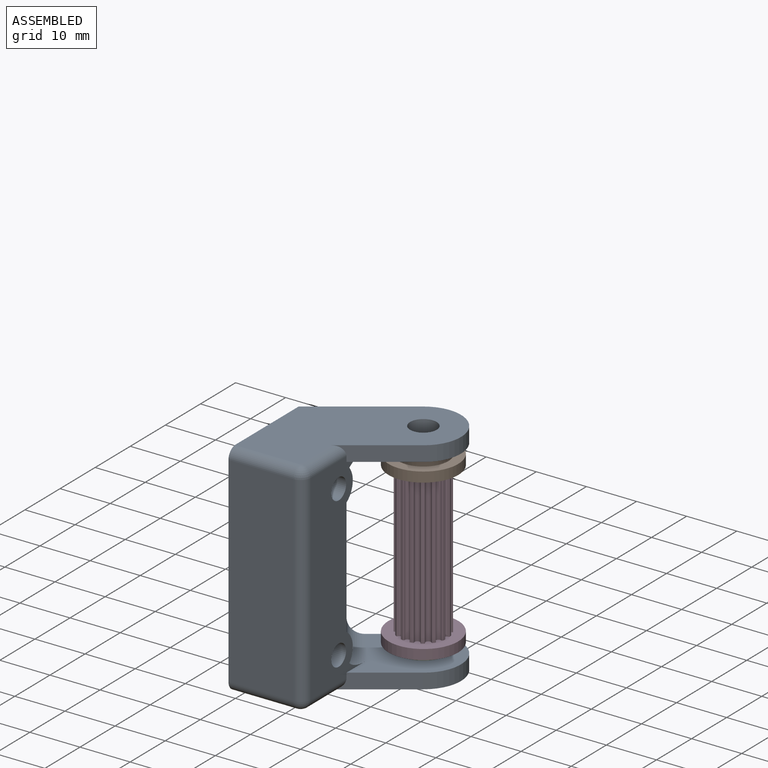
[diagram: assembled view]
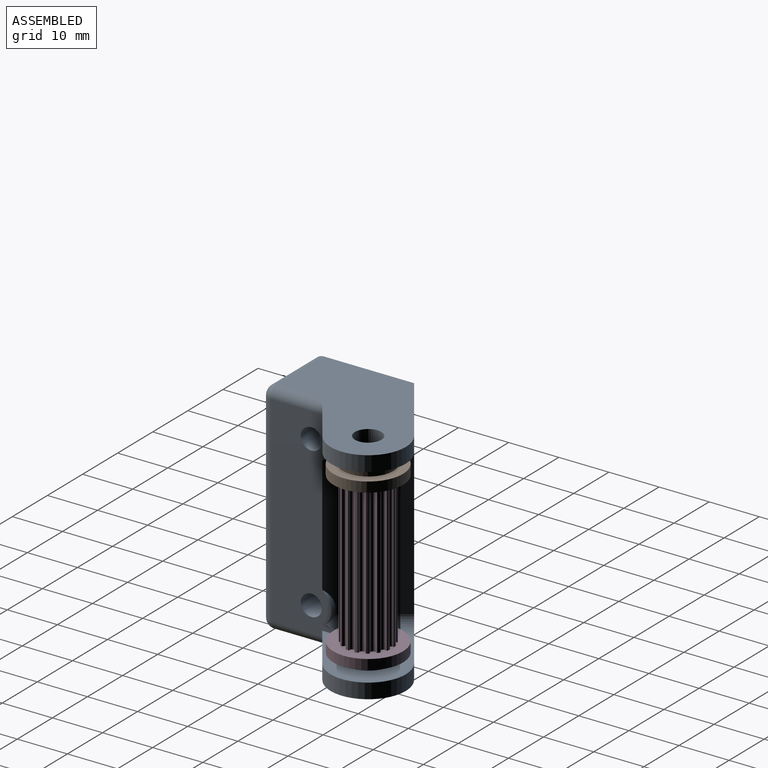
[diagram: assembled view, second angle]
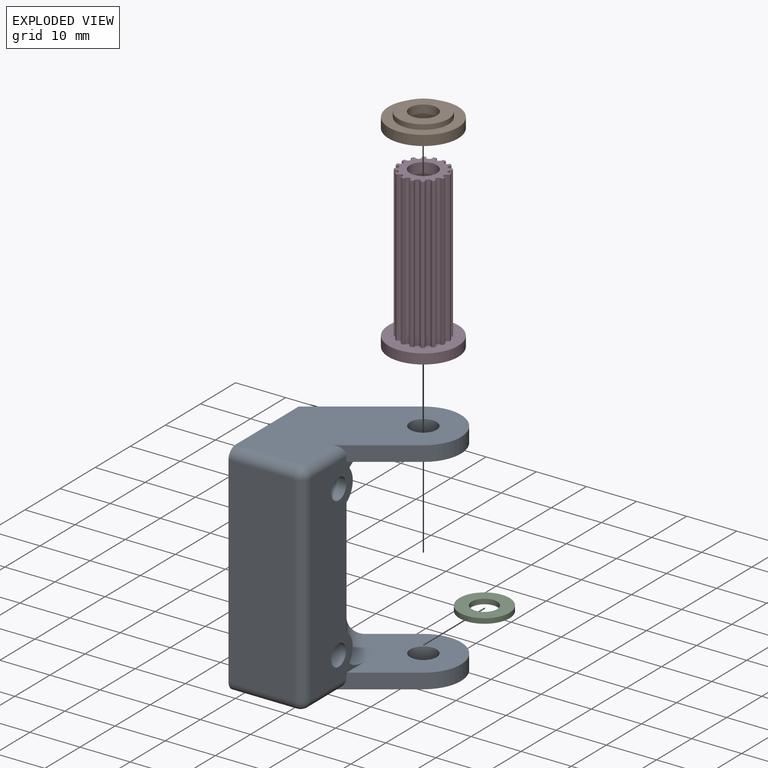
[diagram: exploded view]
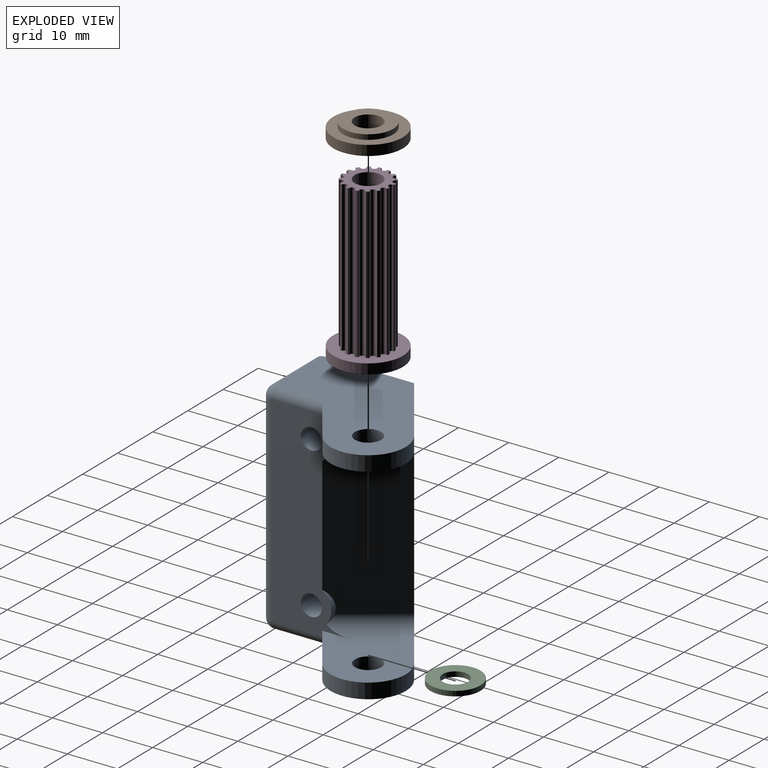
[diagram: exploded view, second angle]
ASSEMBLY  parts=4 mates=3
PART A: 28 faces, bbox 28.5x33x44 mm
  f0: plane 12.3x8.61mm, normal (0.57,-0.82,0), area 38.8mm2, adj f7,f8,f11,f12,f19
  f1: plane 44x16.7mm, normal (-0.57,0.82,0), area 422.9mm2, adj f3,f5,f8,f10,f11,f12,f13,f14
  f2: plane 12.3x8.61mm, normal (0.57,-0.82,0), area 38.8mm2, adj f3,f7,f10,f13,f18
  f3: cylinder r=7.5mm len=13.64mm, axis (0,0,-1), area 70.7mm2, adj f1,f2,f10,f13
  f4: cylinder r=2.65mm len=5.3mm, axis (0,0,-1), area 50mm2, adj f10,f13
  f5: plane 44x20mm, normal (-1,0,0), area 850.6mm2, adj f1,f6,f10,f11,f17,f20,f24,f25
  f6: plane 40x13mm, normal (0,-1,0), area 520mm2, adj f5,f17,f20,f23
  f7: plane 40x15.42mm, normal (1,0,0), area 402.2mm2, adj f0,f2,f12,f13,f14,f15,f16,f18
  f8: cylinder r=7.5mm len=13.64mm, axis (0,0,-1), area 70.7mm2, adj f0,f1,f11,f12
  f9: cylinder r=2.65mm len=5.3mm, axis (0,0,-1), area 50mm2, adj f11,f12
  f10: plane 31.05x28.5mm, normal (0,0,1), area 506mm2, adj f1,f2,f3,f4,f5,f17,f18
  f11: plane 31.05x28.5mm, normal (0,0,-1), area 506mm2, adj f0,f1,f5,f8,f9,f19,f20
  f12: plane 20.86x19.65mm, normal (0,0,1), area 216.4mm2, adj f0,f1,f7,f8,f9,f15
  f13: plane 20.86x19.65mm, normal (0,0,-1), area 216.4mm2, adj f1,f2,f3,f4,f7,f16
  f14: plane 32x12.29mm, normal (0.82,0.57,0), area 465.3mm2, adj f1,f7,f15,f16,f26,f27
  f15: cylinder r=3mm len=13.45mm, axis (0.57,-0.82,0), area 61.2mm2, adj f1,f7,f12,f14,f27
  f16: cylinder r=3mm len=13.45mm, axis (-0.57,0.82,0), area 61.2mm2, adj f1,f7,f13,f14,f26
  f17: cylinder r=2mm len=13mm, axis (-1,0,0), area 40.8mm2, adj f5,f6,f10,f21
  f18: cylinder r=2mm len=10.19mm, axis (0,-1,0), area 30.4mm2, adj f2,f7,f10,f21
  f19: cylinder r=2mm len=10.19mm, axis (0,1,0), area 30.4mm2, adj f0,f7,f11,f22
  f20: cylinder r=2mm len=13mm, axis (1,0,0), area 40.8mm2, adj f5,f6,f11,f22
  f21: sphere r=2mm, area 6.3mm2, adj f17,f18,f23
  f22: sphere r=2mm, area 6.3mm2, adj f19,f20,f23
  f23: cylinder r=2mm len=40mm, axis (0,0,-1), area 125.7mm2, adj f6,f7,f21,f22
  f24: cylinder r=2.1mm len=15mm, axis (1,0,0), area 197.9mm2, adj f5,f7
  f25: cylinder r=2.1mm len=15mm, axis (1,0,0), area 197.9mm2, adj f5,f7
  f26: cylinder r=4mm len=5.97mm, axis (1,0,0), area 5.9mm2, adj f7,f14,f16
  f27: cylinder r=4mm len=5.97mm, axis (1,0,0), area 5.9mm2, adj f7,f14,f15
PART B: 6 faces, bbox 13.9x13.9x3 mm
  f0: cylinder r=6.95mm len=13.9mm, axis (0,0,-1), area 87.3mm2, adj f2,f3
  f1: cylinder r=2.7mm len=5.4mm, axis (0,0,-1), area 50.9mm2, adj f3,f5
  f2: plane 13.9x13.9mm, normal (0,0,1), area 73.2mm2, adj f0,f4
  f3: plane 13.9x13.9mm, normal (0,0,-1), area 128.8mm2, adj f0,f1
  f4: cylinder r=5mm len=10mm, axis (0,0,-1), area 31.4mm2, adj f2,f5
  f5: plane 10x10mm, normal (0,0,1), area 55.6mm2, adj f1,f4
PART C: 4 faces, bbox 10x10x1 mm
  f0: cylinder r=2.55mm len=5.1mm, axis (0,0,-1), area 16mm2, adj f2,f3
  f1: cylinder r=5mm len=10mm, axis (0,0,-1), area 31.4mm2, adj f2,f3
  f2: plane 10x10mm, normal (0,0,1), area 58.1mm2, adj f0,f1
  f3: plane 10x10mm, normal (0,0,-1), area 58.1mm2, adj f0,f1
PART D: 69 faces, bbox 32x13.9x13.9 mm
  f0: cylinder r=0.55mm len=30mm, axis (-1,0,0), area 53mm2, adj f17,f27,f64,f67
  f1: cylinder r=0.55mm len=30mm, axis (-1,0,0), area 53mm2, adj f18,f27,f63,f67
  f2: cylinder r=0.55mm len=30mm, axis (-1,0,0), area 53mm2, adj f19,f27,f62,f67
  f3: cylinder r=0.55mm len=30mm, axis (-1,0,0), area 53mm2, adj f20,f21,f27,f67
  f4: cylinder r=0.55mm len=30mm, axis (-1,0,0), area 53mm2, adj f22,f27,f61,f67
  f5: cylinder r=0.55mm len=30mm, axis (-1,0,0), area 53mm2, adj f23,f27,f60,f67
  f6: cylinder r=0.55mm len=30mm, axis (-1,0,0), area 53mm2, adj f24,f27,f59,f67
  f7: cylinder r=0.55mm len=30mm, axis (-1,0,0), area 53mm2, adj f25,f27,f58,f67
  f8: cylinder r=0.55mm len=30mm, axis (-1,0,0), area 53mm2, adj f27,f56,f57,f67
  f9: cylinder r=0.55mm len=30mm, axis (-1,0,0), area 53mm2, adj f27,f54,f55,f67
  f10: cylinder r=0.55mm len=30mm, axis (-1,0,0), area 53mm2, adj f16,f27,f65,f67
  f11: cylinder r=0.55mm len=30mm, axis (-1,0,0), area 53mm2, adj f27,f52,f53,f67
  f12: cylinder r=0.55mm len=30mm, axis (-1,0,0), area 53mm2, adj f27,f50,f51,f67
  f13: cylinder r=0.55mm len=30mm, axis (-1,0,0), area 53mm2, adj f27,f48,f49,f67
  f14: cylinder r=0.55mm len=30mm, axis (-1,0,0), area 53mm2, adj f27,f46,f47,f67
  f15: cylinder r=0.55mm len=30mm, axis (-1,0,0), area 53mm2, adj f27,f44,f45,f67
  f16: cylinder r=0.16mm len=30mm, axis (1,0,0), area 8.4mm2, adj f10,f27,f28,f67
  f17: cylinder r=0.16mm len=30mm, axis (1,0,0), area 8.4mm2, adj f0,f27,f29,f67
  f18: cylinder r=0.16mm len=30mm, axis (1,0,0), area 8.4mm2, adj f1,f27,f30,f67
  f19: cylinder r=0.16mm len=30mm, axis (1,0,0), area 8.4mm2, adj f2,f27,f31,f67
  f20: cylinder r=0.16mm len=30mm, axis (-1,0,0), area 8.4mm2, adj f3,f27,f31,f67
  f21: cylinder r=0.16mm len=30mm, axis (1,0,0), area 8.4mm2, adj f3,f27,f32,f67
  f22: cylinder r=0.16mm len=30mm, axis (-1,0,0), area 8.4mm2, adj f4,f27,f32,f67
  f23: cylinder r=0.16mm len=30mm, axis (-1,0,0), area 8.4mm2, adj f5,f27,f33,f67
  f24: cylinder r=0.16mm len=30mm, axis (-1,0,0), area 8.4mm2, adj f6,f27,f34,f67
  f25: cylinder r=0.16mm len=30mm, axis (-1,0,0), area 8.4mm2, adj f7,f27,f35,f67
  f26: cylinder r=6.95mm len=13.9mm, axis (-1,0,0), area 87.3mm2, adj f27,f68
  f27: plane 13.9x13.9mm, normal (-1,0,0), area 90mm2, adj f0,f1,f2,f3,f4,f5,f6,f7
  f28: cylinder r=4.84mm len=30mm, axis (-1,0,0), area 12.8mm2, adj f16,f27,f64,f67
  f29: cylinder r=4.84mm len=30mm, axis (-1,0,0), area 12.8mm2, adj f17,f27,f63,f67
  f30: cylinder r=4.84mm len=30mm, axis (-1,0,0), area 12.8mm2, adj f18,f27,f62,f67
  f31: cylinder r=4.84mm len=30mm, axis (-1,0,0), area 12.8mm2, adj f19,f20,f27,f67
  f32: cylinder r=4.84mm len=30mm, axis (-1,0,0), area 12.8mm2, adj f21,f22,f27,f67
  f33: cylinder r=4.84mm len=30mm, axis (-1,0,0), area 12.8mm2, adj f23,f27,f61,f67
  f34: cylinder r=4.84mm len=30mm, axis (-1,0,0), area 12.8mm2, adj f24,f27,f60,f67
  f35: cylinder r=4.84mm len=30mm, axis (-1,0,0), area 12.8mm2, adj f25,f27,f59,f67
  f36: cylinder r=4.84mm len=30mm, axis (-1,0,0), area 12.8mm2, adj f27,f57,f58,f67
  f37: cylinder r=4.84mm len=30mm, axis (-1,0,0), area 12.8mm2, adj f27,f55,f56,f67
  f38: cylinder r=4.84mm len=30mm, axis (-1,0,0), area 12.8mm2, adj f27,f53,f54,f67
  f39: cylinder r=4.84mm len=30mm, axis (-1,0,0), area 12.8mm2, adj f27,f44,f65,f67
  f40: cylinder r=4.84mm len=30mm, axis (-1,0,0), area 12.8mm2, adj f27,f51,f52,f67
  f41: cylinder r=4.84mm len=30mm, axis (-1,0,0), area 12.8mm2, adj f27,f49,f50,f67
  f42: cylinder r=4.84mm len=30mm, axis (-1,0,0), area 12.8mm2, adj f27,f47,f48,f67
  f43: cylinder r=4.84mm len=30mm, axis (-1,0,0), area 12.8mm2, adj f27,f45,f46,f67
  f44: cylinder r=0.16mm len=30mm, axis (1,0,0), area 8.4mm2, adj f15,f27,f39,f67
  f45: cylinder r=0.16mm len=30mm, axis (-1,0,0), area 8.4mm2, adj f15,f27,f43,f67
  f46: cylinder r=0.16mm len=30mm, axis (1,0,0), area 8.4mm2, adj f14,f27,f43,f67
  f47: cylinder r=0.16mm len=30mm, axis (-1,0,0), area 8.4mm2, adj f14,f27,f42,f67
  f48: cylinder r=0.16mm len=30mm, axis (1,0,0), area 8.4mm2, adj f13,f27,f42,f67
  f49: cylinder r=0.16mm len=30mm, axis (-1,0,0), area 8.4mm2, adj f13,f27,f41,f67
  f50: cylinder r=0.16mm len=30mm, axis (1,0,0), area 8.4mm2, adj f12,f27,f41,f67
  f51: cylinder r=0.16mm len=30mm, axis (-1,0,0), area 8.4mm2, adj f12,f27,f40,f67
  f52: cylinder r=0.16mm len=30mm, axis (1,0,0), area 8.4mm2, adj f11,f27,f40,f67
  f53: cylinder r=0.16mm len=30mm, axis (-1,0,0), area 8.4mm2, adj f11,f27,f38,f67
  f54: cylinder r=0.16mm len=30mm, axis (1,0,0), area 8.4mm2, adj f9,f27,f38,f67
  f55: cylinder r=0.16mm len=30mm, axis (-1,0,0), area 8.4mm2, adj f9,f27,f37,f67
  f56: cylinder r=0.16mm len=30mm, axis (1,0,0), area 8.4mm2, adj f8,f27,f37,f67
  f57: cylinder r=0.16mm len=30mm, axis (-1,0,0), area 8.4mm2, adj f8,f27,f36,f67
  f58: cylinder r=0.16mm len=30mm, axis (1,0,0), area 8.4mm2, adj f7,f27,f36,f67
  f59: cylinder r=0.16mm len=30mm, axis (1,0,0), area 8.4mm2, adj f6,f27,f35,f67
  f60: cylinder r=0.16mm len=30mm, axis (1,0,0), area 8.4mm2, adj f5,f27,f34,f67
  f61: cylinder r=0.16mm len=30mm, axis (1,0,0), area 8.4mm2, adj f4,f27,f33,f67
  f62: cylinder r=0.16mm len=30mm, axis (-1,0,0), area 8.4mm2, adj f2,f27,f30,f67
  f63: cylinder r=0.16mm len=30mm, axis (-1,0,0), area 8.4mm2, adj f1,f27,f29,f67
  f64: cylinder r=0.16mm len=30mm, axis (-1,0,0), area 8.4mm2, adj f0,f27,f28,f67
  f65: cylinder r=0.16mm len=30mm, axis (-1,0,0), area 8.4mm2, adj f10,f27,f39,f67
  f66: cylinder r=2.7mm len=32mm, axis (1,0,0), area 542.9mm2, adj f67,f68
  f67: plane 9.57x9.57mm, normal (-1,0,0), area 38.8mm2, adj f0,f1,f2,f3,f4,f5,f6,f7
  f68: plane 13.9x13.9mm, normal (1,0,0), area 128.8mm2, adj f26,f66
PLACE A t=(-21,-10.54,22.48)mm
PLACE B rot(axis=(0,0,-1),180deg) t=(0,-5,59.48)mm
PLACE C t=(0,-5,26.48)mm
PLACE D rot(axis=(-0.71,0,0.71),180deg) t=(0,-5,43.33)mm
MATE fastened B.f0 <-> D.f26  axis (0,0,-1) through (0,-5,59.48)mm
MATE fastened D.f66 <-> C.f1  axis (0,0,-1) through (0,-5,27.48)mm
MATE fastened A.f3 <-> C.f1  axis (0,0,1) through (0,-5,25.48)mm
